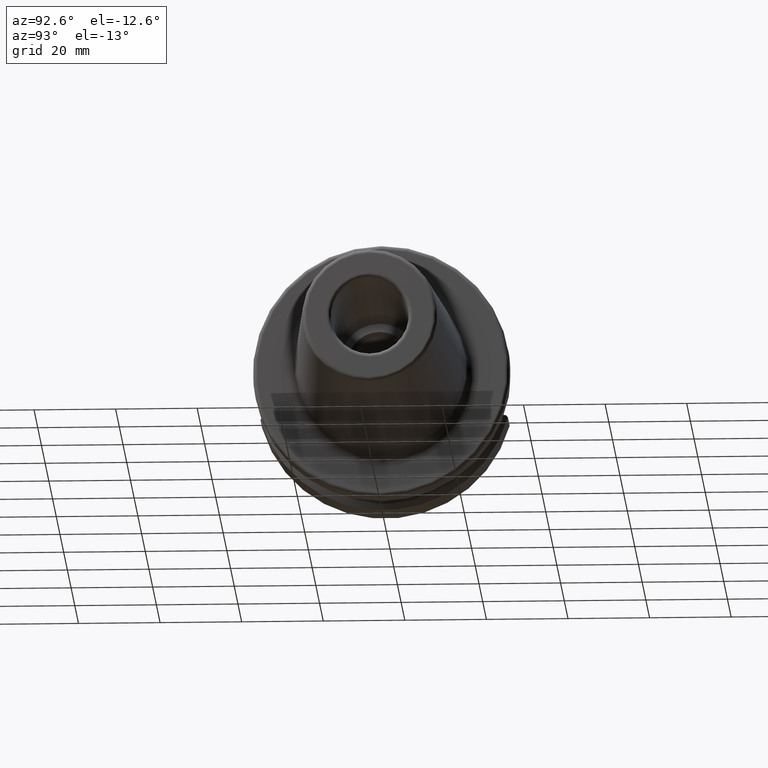
[diagram: clean part render]
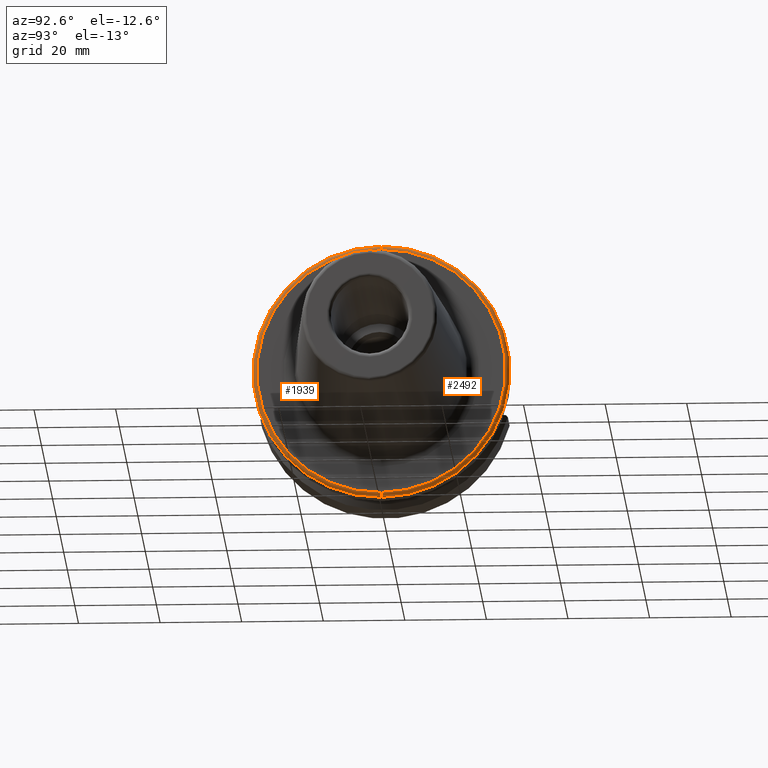
[diagram: same view with one multi-face feature highlighted, each face labeled with its STEP entity id]
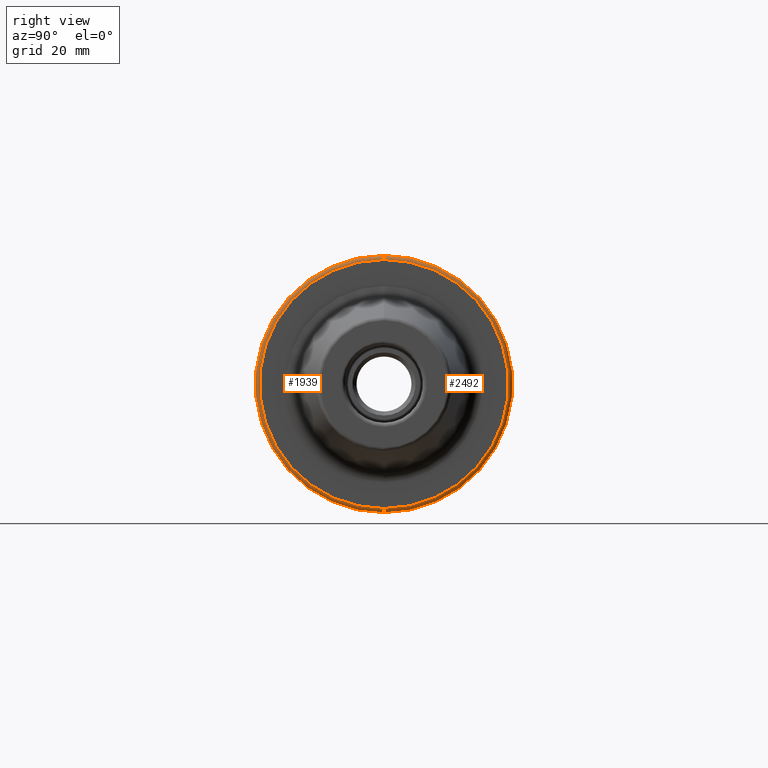
[diagram: same view with one multi-face feature highlighted, each face labeled with its STEP entity id]
A machine part, auxiliary view. The highlighted faces form ONE feature: a constant-radius fillet chain: 2 tangent blend faces with common blend radius 1 mm. The faces share edges in the B-rep.
A second angle (right view) of the same feature is appended — it is thin or edge-on in the first view.
Their STEP definitions:
[1] entity #1939 (Torus):
#455=CARTESIAN_POINT('',(2.7E1,0.E0,0.E0));
#456=DIRECTION('',(-1.E0,0.E0,0.E0));
#457=DIRECTION('',(0.E0,0.E0,-1.E0));
#458=AXIS2_PLACEMENT_3D('',#455,#456,#457);
#475=CARTESIAN_POINT('',(2.6E1,-3.677058657559E-13,-3.05E1));
#476=DIRECTION('',(0.E0,-1.E0,1.201816424157E-14));
#477=DIRECTION('',(0.E0,-1.201816424157E-14,-1.E0));
#478=AXIS2_PLACEMENT_3D('',#475,#476,#477);
#492=CARTESIAN_POINT('',(2.6E1,0.E0,0.E0));
#493=DIRECTION('',(-1.E0,0.E0,0.E0));
#494=DIRECTION('',(0.E0,0.E0,-1.E0));
#495=AXIS2_PLACEMENT_3D('',#492,#493,#494);
#970=CARTESIAN_POINT('',(2.6E1,-4.005518139394E-12,3.05E1));
#971=DIRECTION('',(0.E0,1.E0,1.313289754723E-13));
#972=DIRECTION('',(0.E0,-1.313289754723E-13,1.E0));
#973=AXIS2_PLACEMENT_3D('',#970,#971,#972);
#1026=CARTESIAN_POINT('',(2.6E1,0.E0,-3.15E1));
#1027=CARTESIAN_POINT('',(2.6E1,0.E0,3.15E1));
#1028=VERTEX_POINT('',#1026);
#1029=VERTEX_POINT('',#1027);
#1030=CARTESIAN_POINT('',(2.7E1,0.E0,-3.05E1));
#1031=CARTESIAN_POINT('',(2.7E1,0.E0,3.05E1));
#1032=VERTEX_POINT('',#1030);
#1033=VERTEX_POINT('',#1031);
#1925=CARTESIAN_POINT('',(2.6E1,0.E0,0.E0));
#1926=DIRECTION('',(-1.E0,0.E0,0.E0));
#1927=DIRECTION('',(0.E0,9.684522776956E-1,-2.491990887348E-1));
#1928=AXIS2_PLACEMENT_3D('',#1925,#1926,#1927);
#1929=TOROIDAL_SURFACE('',#1928,3.05E1,1.E0);
#1931=ORIENTED_EDGE('',*,*,#1930,.T.);
#1933=ORIENTED_EDGE('',*,*,#1932,.T.);
#1934=ORIENTED_EDGE('',*,*,#1913,.F.);
#1936=ORIENTED_EDGE('',*,*,#1935,.F.);
#1937=EDGE_LOOP('',(#1931,#1933,#1934,#1936));
#1938=FACE_OUTER_BOUND('',#1937,.F.);
#1939=ADVANCED_FACE('',(#1938),#1929,.T.);
#459=CIRCLE('',#458,3.05E1);
#479=CIRCLE('',#478,1.E0);
#496=CIRCLE('',#495,3.15E1);
#974=CIRCLE('',#973,1.E0);
#1913=EDGE_CURVE('',#1032,#1033,#459,.T.);
#1930=EDGE_CURVE('',#1028,#1029,#496,.T.);
#1932=EDGE_CURVE('',#1029,#1033,#974,.T.);
#1935=EDGE_CURVE('',#1028,#1032,#479,.T.);
[2] entity #2492 (Torus):
#460=CARTESIAN_POINT('',(2.7E1,0.E0,0.E0));
#461=DIRECTION('',(-1.E0,0.E0,0.E0));
#462=DIRECTION('',(0.E0,0.E0,1.E0));
#463=AXIS2_PLACEMENT_3D('',#460,#461,#462);
#475=CARTESIAN_POINT('',(2.6E1,-3.677058657559E-13,-3.05E1));
#476=DIRECTION('',(0.E0,-1.E0,1.201816424157E-14));
#477=DIRECTION('',(0.E0,-1.201816424157E-14,-1.E0));
#478=AXIS2_PLACEMENT_3D('',#475,#476,#477);
#729=CARTESIAN_POINT('',(2.6E1,0.E0,0.E0));
#730=DIRECTION('',(-1.E0,0.E0,0.E0));
#731=DIRECTION('',(0.E0,0.E0,1.E0));
#732=AXIS2_PLACEMENT_3D('',#729,#730,#731);
#970=CARTESIAN_POINT('',(2.6E1,-4.005518139394E-12,3.05E1));
#971=DIRECTION('',(0.E0,1.E0,1.313289754723E-13));
#972=DIRECTION('',(0.E0,-1.313289754723E-13,1.E0));
#973=AXIS2_PLACEMENT_3D('',#970,#971,#972);
#1026=CARTESIAN_POINT('',(2.6E1,0.E0,-3.15E1));
#1027=CARTESIAN_POINT('',(2.6E1,0.E0,3.15E1));
#1028=VERTEX_POINT('',#1026);
#1029=VERTEX_POINT('',#1027);
#1030=CARTESIAN_POINT('',(2.7E1,0.E0,-3.05E1));
#1031=CARTESIAN_POINT('',(2.7E1,0.E0,3.05E1));
#1032=VERTEX_POINT('',#1030);
#1033=VERTEX_POINT('',#1031);
#2481=CARTESIAN_POINT('',(2.6E1,0.E0,0.E0));
#2482=DIRECTION('',(-1.E0,0.E0,0.E0));
#2483=DIRECTION('',(0.E0,-6.569083321303E-3,9.999784233394E-1));
#2484=AXIS2_PLACEMENT_3D('',#2481,#2482,#2483);
#2485=TOROIDAL_SURFACE('',#2484,3.05E1,1.E0);
#2486=ORIENTED_EDGE('',*,*,#2198,.T.);
#2487=ORIENTED_EDGE('',*,*,#1935,.T.);
#2488=ORIENTED_EDGE('',*,*,#1915,.F.);
#2489=ORIENTED_EDGE('',*,*,#1932,.F.);
#2490=EDGE_LOOP('',(#2486,#2487,#2488,#2489));
#2491=FACE_OUTER_BOUND('',#2490,.F.);
#2492=ADVANCED_FACE('',(#2491),#2485,.T.);
#464=CIRCLE('',#463,3.05E1);
#479=CIRCLE('',#478,1.E0);
#733=CIRCLE('',#732,3.15E1);
#974=CIRCLE('',#973,1.E0);
#1915=EDGE_CURVE('',#1033,#1032,#464,.T.);
#1932=EDGE_CURVE('',#1029,#1033,#974,.T.);
#1935=EDGE_CURVE('',#1028,#1032,#479,.T.);
#2198=EDGE_CURVE('',#1029,#1028,#733,.T.);